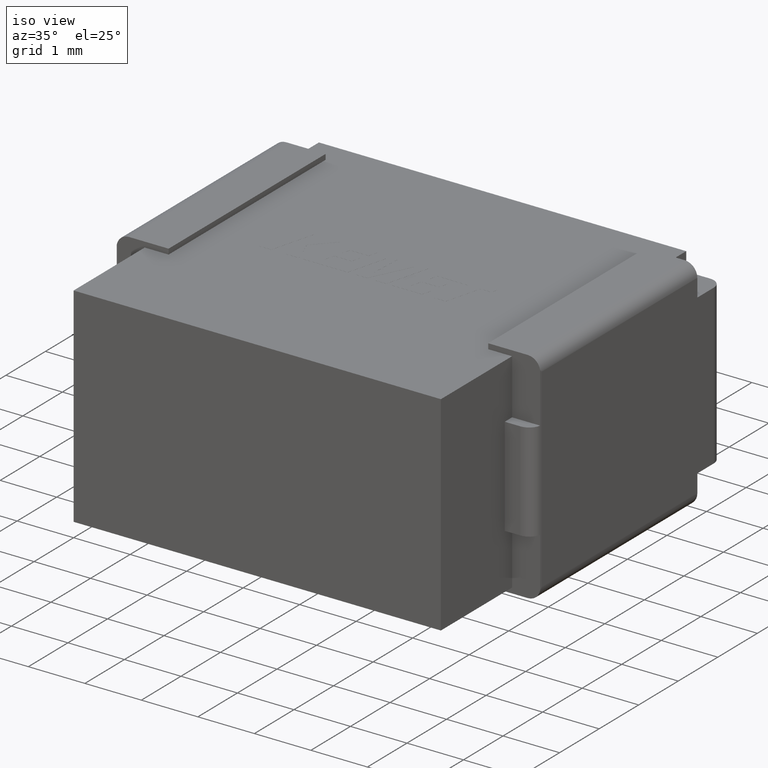
[diagram: clean part render]
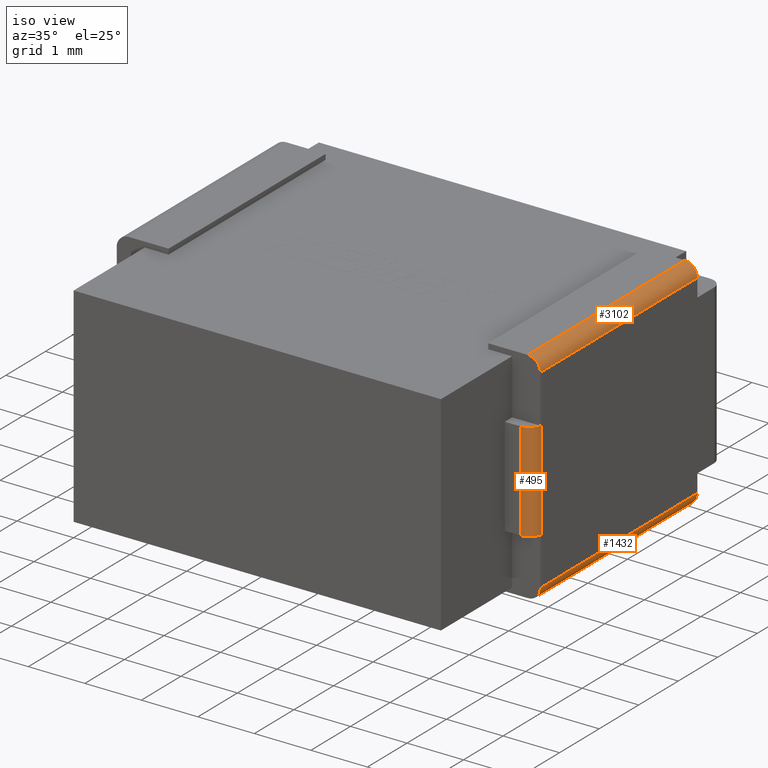
[diagram: same view with one multi-face feature highlighted, each face labeled with its STEP entity id]
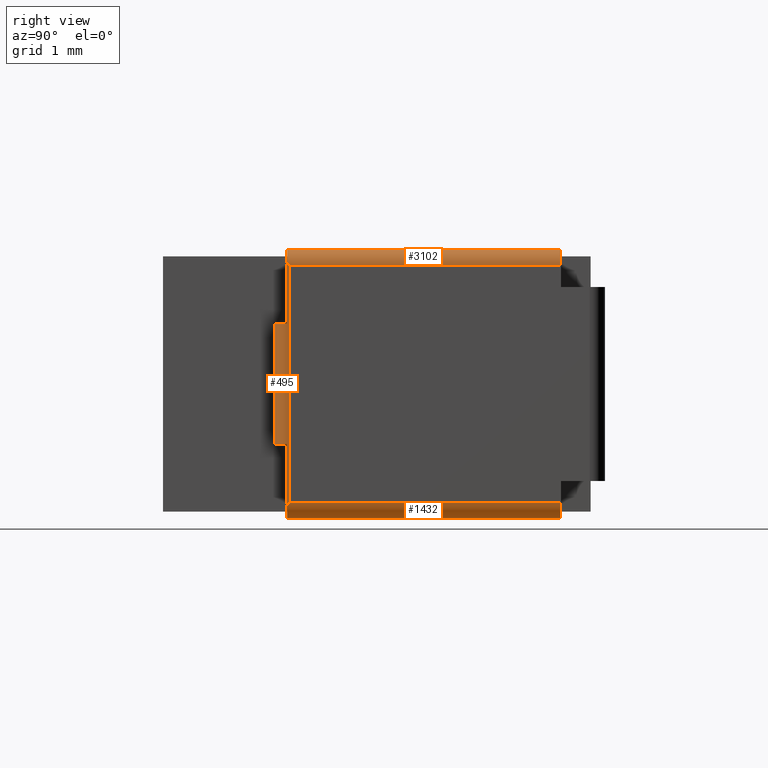
[diagram: same view with one multi-face feature highlighted, each face labeled with its STEP entity id]
A machine part, iso view. The highlighted faces form ONE feature: a constant-radius fillet chain: 3 tangent blend faces with common blend radius 0.222 mm. The faces share edges in the B-rep.
A second angle (right view) of the same feature is appended — it is thin or edge-on in the first view.
Their STEP definitions:
[1] entity #495 (Cylinder):
#23 = CARTESIAN_POINT ( 'NONE',  ( 6.778000000000001357, 1.835326539126285184, -0.4439999999999999503 ) ) ;
#102 =( BOUNDED_CURVE ( )  B_SPLINE_CURVE ( 3, ( #305, #1713, #3966, #4353 ),
 .UNSPECIFIED., .F., .F. ) 
 B_SPLINE_CURVE_WITH_KNOTS ( ( 4, 4 ),
 ( 1.407914902314552075, 1.570796326794896780 ),
 .UNSPECIFIED. ) 
 CURVE ( )  GEOMETRIC_REPRESENTATION_ITEM ( )  RATIONAL_B_SPLINE_CURVE ( ( 1.000000000000000000, 0.9977903585054996860, 0.9977903585054996860, 1.000000000000000000 ) ) 
 REPRESENTATION_ITEM ( '' )  );
#111 = LINE ( 'NONE', #546, #1683 ) ;
#278 = AXIS2_PLACEMENT_3D ( 'NONE', #4503, #1280, #2394 ) ;
#305 = CARTESIAN_POINT ( 'NONE',  ( 6.997061635162345361, 1.799326539126285596, -0.09151177721998315917 ) ) ;
#495 = ADVANCED_FACE ( 'NONE', ( #2867 ), #1365, .T. ) ;
#546 = CARTESIAN_POINT ( 'NONE',  ( 6.997061635162345361, 1.799326539126285596, -3.608488222780017018 ) ) ;
#559 = EDGE_CURVE ( 'NONE', #1162, #2958, #102, .T. ) ;
#591 = LINE ( 'NONE', #2048, #3711 ) ;
#657 = EDGE_LOOP ( 'NONE', ( #1097, #4380, #755, #3801, #4087, #1902, #2125, #4541 ) ) ;
#723 = VERTEX_POINT ( 'NONE', #1617 ) ;
#755 = ORIENTED_EDGE ( 'NONE', *, *, #2820, .F. ) ;
#784 = CARTESIAN_POINT ( 'NONE',  ( 6.778000000000001357, 1.613326539126285208, -0.9767999999999998906 ) ) ;
#865 = VERTEX_POINT ( 'NONE', #2262 ) ;
#961 = CARTESIAN_POINT ( 'NONE',  ( 6.997061635162345361, 1.799326539126285596, -0.09151177721998315917 ) ) ;
#1097 = ORIENTED_EDGE ( 'NONE', *, *, #4347, .F. ) ;
#1124 = EDGE_CURVE ( 'NONE', #3219, #723, #1547, .T. ) ;
#1162 = VERTEX_POINT ( 'NONE', #961 ) ;
#1207 = CARTESIAN_POINT ( 'NONE',  ( 7.000000000000000888, 1.835326539126285184, -3.572488222780016542 ) ) ;
#1280 = DIRECTION ( 'NONE',  ( -0.000000000000000000, 1.165808787618822299E-15, 1.000000000000000000 ) ) ;
#1307 = VECTOR ( 'NONE', #3029, 1000.000000000000000 ) ;
#1320 = VERTEX_POINT ( 'NONE', #2169 ) ;
#1365 = CYLINDRICAL_SURFACE ( 'NONE', #3203, 0.2219999999999999751 ) ;
#1547 =( BOUNDED_CURVE ( )  B_SPLINE_CURVE ( 3, ( #1557, #2990, #4406, #4052 ),
 .UNSPECIFIED., .F., .F. ) 
 B_SPLINE_CURVE_WITH_KNOTS ( ( 4, 4 ),
 ( 1.570796326794896558, 1.733677751275242152 ),
 .UNSPECIFIED. ) 
 CURVE ( )  GEOMETRIC_REPRESENTATION_ITEM ( )  RATIONAL_B_SPLINE_CURVE ( ( 1.000000000000000000, 0.9977903585054994640, 0.9977903585054994640, 1.000000000000000000 ) ) 
 REPRESENTATION_ITEM ( '' )  );
#1557 = CARTESIAN_POINT ( 'NONE',  ( 7.000000000000000888, 1.835326539126285184, -3.572488222780016542 ) ) ;
#1617 = CARTESIAN_POINT ( 'NONE',  ( 6.997061635162345361, 1.799326539126285596, -3.608488222780017018 ) ) ;
#1683 = VECTOR ( 'NONE', #1955, 1000.000000000000000 ) ;
#1713 = CARTESIAN_POINT ( 'NONE',  ( 6.999018376017032139, 1.811233396104519500, -0.1034186341982176460 ) ) ;
#1777 = DIRECTION ( 'NONE',  ( 0.000000000000000000, 0.000000000000000000, -1.000000000000000000 ) ) ;
#1862 = CARTESIAN_POINT ( 'NONE',  ( 7.000000000000000888, 1.835326539126285184, -0.4439999999999999503 ) ) ;
#1902 = ORIENTED_EDGE ( 'NONE', *, *, #3103, .F. ) ;
#1955 = DIRECTION ( 'NONE',  ( -0.000000000000000000, -0.000000000000000000, 1.000000000000000000 ) ) ;
#2048 = CARTESIAN_POINT ( 'NONE',  ( 6.997061635162345361, 1.799326539126285152, -0.9768000000000001126 ) ) ;
#2125 = ORIENTED_EDGE ( 'NONE', *, *, #559, .F. ) ;
#2169 = CARTESIAN_POINT ( 'NONE',  ( 6.997061635162345361, 1.799326539126285152, -0.9768000000000001126 ) ) ;
#2262 = CARTESIAN_POINT ( 'NONE',  ( 6.997061635162345361, 1.799326539126285152, -2.723200000000000287 ) ) ;
#2394 = DIRECTION ( 'NONE',  ( 0.000000000000000000, -1.000000000000000000, 9.767587139509050785E-16 ) ) ;
#2428 = CARTESIAN_POINT ( 'NONE',  ( 6.778000000000001357, 1.835326539126285184, -2.723200000000000287 ) ) ;
#2507 = DIRECTION ( 'NONE',  ( 0.000000000000000000, 0.000000000000000000, -1.000000000000000000 ) ) ;
#2680 = VERTEX_POINT ( 'NONE', #784 ) ;
#2811 = LINE ( 'NONE', #4074, #1307 ) ;
#2820 = EDGE_CURVE ( 'NONE', #865, #4451, #4290, .T. ) ;
#2867 = FACE_OUTER_BOUND ( 'NONE', #657, .T. ) ;
#2958 = VERTEX_POINT ( 'NONE', #3658 ) ;
#2967 = LINE ( 'NONE', #1862, #4058 ) ;
#2990 = CARTESIAN_POINT ( 'NONE',  ( 7.000000000000001776, 1.823259970522389972, -3.584554791383912420 ) ) ;
#3029 = DIRECTION ( 'NONE',  ( -0.000000000000000000, -0.000000000000000000, 1.000000000000000000 ) ) ;
#3103 = EDGE_CURVE ( 'NONE', #2958, #3219, #2967, .T. ) ;
#3143 = DIRECTION ( 'NONE',  ( -1.000000000000000000, 0.000000000000000000, 0.000000000000000000 ) ) ;
#3203 = AXIS2_PLACEMENT_3D ( 'NONE', #23, #2507, #3143 ) ;
#3219 = VERTEX_POINT ( 'NONE', #1207 ) ;
#3331 = CIRCLE ( 'NONE', #278, 0.2219999999999999751 ) ;
#3557 = CARTESIAN_POINT ( 'NONE',  ( 6.778000000000001357, 1.613326539126285208, -2.723200000000000287 ) ) ;
#3658 = CARTESIAN_POINT ( 'NONE',  ( 7.000000000000000888, 1.835326539126285184, -0.1275117772199834409 ) ) ;
#3711 = VECTOR ( 'NONE', #4171, 1000.000000000000000 ) ;
#3801 = ORIENTED_EDGE ( 'NONE', *, *, #4264, .F. ) ;
#3935 = EDGE_CURVE ( 'NONE', #4451, #2680, #2811, .T. ) ;
#3966 = CARTESIAN_POINT ( 'NONE',  ( 7.000000000000001776, 1.823259970522389972, -0.1154452086160880075 ) ) ;
#4017 = DIRECTION ( 'NONE',  ( 0.000000000000000000, 0.000000000000000000, -1.000000000000000000 ) ) ;
#4052 = CARTESIAN_POINT ( 'NONE',  ( 6.997061635162345361, 1.799326539126285596, -3.608488222780017018 ) ) ;
#4058 = VECTOR ( 'NONE', #4017, 1000.000000000000000 ) ;
#4074 = CARTESIAN_POINT ( 'NONE',  ( 6.778000000000001357, 1.613326539126285208, -0.9767999999999998906 ) ) ;
#4087 = ORIENTED_EDGE ( 'NONE', *, *, #1124, .F. ) ;
#4171 = DIRECTION ( 'NONE',  ( -0.000000000000000000, -0.000000000000000000, 1.000000000000000000 ) ) ;
#4231 = DIRECTION ( 'NONE',  ( -1.000000000000000000, 0.000000000000000000, 0.000000000000000000 ) ) ;
#4264 = EDGE_CURVE ( 'NONE', #723, #865, #111, .T. ) ;
#4290 = CIRCLE ( 'NONE', #4511, 0.2219999999999999751 ) ;
#4338 = EDGE_CURVE ( 'NONE', #1320, #1162, #591, .T. ) ;
#4347 = EDGE_CURVE ( 'NONE', #2680, #1320, #3331, .T. ) ;
#4353 = CARTESIAN_POINT ( 'NONE',  ( 7.000000000000000888, 1.835326539126285184, -0.1275117772199834409 ) ) ;
#4380 = ORIENTED_EDGE ( 'NONE', *, *, #3935, .F. ) ;
#4406 = CARTESIAN_POINT ( 'NONE',  ( 6.999018376017031251, 1.811233396104519500, -3.596581365801783114 ) ) ;
#4451 = VERTEX_POINT ( 'NONE', #3557 ) ;
#4503 = CARTESIAN_POINT ( 'NONE',  ( 6.778000000000001357, 1.835326539126285184, -0.9768000000000001126 ) ) ;
#4511 = AXIS2_PLACEMENT_3D ( 'NONE', #2428, #1777, #4231 ) ;
#4541 = ORIENTED_EDGE ( 'NONE', *, *, #4338, .F. ) ;
[2] entity #3102 (Cylinder):
#38 = ORIENTED_EDGE ( 'NONE', *, *, #1969, .F. ) ;
#102 =( BOUNDED_CURVE ( )  B_SPLINE_CURVE ( 3, ( #305, #1713, #3966, #4353 ),
 .UNSPECIFIED., .F., .F. ) 
 B_SPLINE_CURVE_WITH_KNOTS ( ( 4, 4 ),
 ( 1.407914902314552075, 1.570796326794896780 ),
 .UNSPECIFIED. ) 
 CURVE ( )  GEOMETRIC_REPRESENTATION_ITEM ( )  RATIONAL_B_SPLINE_CURVE ( ( 1.000000000000000000, 0.9977903585054996860, 0.9977903585054996860, 1.000000000000000000 ) ) 
 REPRESENTATION_ITEM ( '' )  );
#166 = DIRECTION ( 'NONE',  ( 0.000000000000000000, -1.000000000000000000, 0.000000000000000000 ) ) ;
#305 = CARTESIAN_POINT ( 'NONE',  ( 6.997061635162345361, 1.799326539126285596, -0.09151177721998315917 ) ) ;
#416 = AXIS2_PLACEMENT_3D ( 'NONE', #4382, #3313, #1183 ) ;
#528 = DIRECTION ( 'NONE',  ( -0.000000000000000000, 1.000000000000000000, -0.000000000000000000 ) ) ;
#559 = EDGE_CURVE ( 'NONE', #1162, #2958, #102, .T. ) ;
#565 = CIRCLE ( 'NONE', #2035, 0.2219999999999999751 ) ;
#574 = CARTESIAN_POINT ( 'NONE',  ( 6.778000000000001357, 5.767326539126284679, -0.1275117772199834409 ) ) ;
#953 = EDGE_CURVE ( 'NONE', #4386, #1372, #4538, .T. ) ;
#961 = CARTESIAN_POINT ( 'NONE',  ( 6.997061635162345361, 1.799326539126285596, -0.09151177721998315917 ) ) ;
#969 = DIRECTION ( 'NONE',  ( 0.000000000000000000, 0.000000000000000000, -1.000000000000000000 ) ) ;
#1081 = DIRECTION ( 'NONE',  ( -0.000000000000000000, 1.000000000000000000, -0.000000000000000000 ) ) ;
#1162 = VERTEX_POINT ( 'NONE', #961 ) ;
#1183 = DIRECTION ( 'NONE',  ( 0.000000000000000000, 0.000000000000000000, -1.000000000000000000 ) ) ;
#1372 = VERTEX_POINT ( 'NONE', #3374 ) ;
#1516 = VECTOR ( 'NONE', #166, 1000.000000000000000 ) ;
#1525 = LINE ( 'NONE', #4394, #1516 ) ;
#1654 = FACE_OUTER_BOUND ( 'NONE', #3672, .T. ) ;
#1713 = CARTESIAN_POINT ( 'NONE',  ( 6.999018376017032139, 1.811233396104519500, -0.1034186341982176460 ) ) ;
#1774 = EDGE_CURVE ( 'NONE', #1372, #2958, #1525, .T. ) ;
#1969 = EDGE_CURVE ( 'NONE', #2891, #4386, #2135, .T. ) ;
#2033 = VECTOR ( 'NONE', #1081, 1000.000000000000000 ) ;
#2035 = AXIS2_PLACEMENT_3D ( 'NONE', #3678, #3708, #2643 ) ;
#2135 = LINE ( 'NONE', #2857, #2033 ) ;
#2643 = DIRECTION ( 'NONE',  ( 0.000000000000000000, 0.000000000000000000, -1.000000000000000000 ) ) ;
#2813 = CARTESIAN_POINT ( 'NONE',  ( 6.778000000000001357, 1.799326539126285152, 0.09448822278001652031 ) ) ;
#2857 = CARTESIAN_POINT ( 'NONE',  ( 6.778000000000001357, 5.767326539126284679, 0.09448822278001652031 ) ) ;
#2891 = VERTEX_POINT ( 'NONE', #2813 ) ;
#2941 = ORIENTED_EDGE ( 'NONE', *, *, #953, .F. ) ;
#2958 = VERTEX_POINT ( 'NONE', #3658 ) ;
#3008 = EDGE_CURVE ( 'NONE', #1162, #2891, #565, .T. ) ;
#3067 = CARTESIAN_POINT ( 'NONE',  ( 6.778000000000001357, 5.767326539126284679, 0.09448822278001652031 ) ) ;
#3102 = ADVANCED_FACE ( 'NONE', ( #1654 ), #4477, .T. ) ;
#3313 = DIRECTION ( 'NONE',  ( 0.000000000000000000, -1.000000000000000000, 0.000000000000000000 ) ) ;
#3374 = CARTESIAN_POINT ( 'NONE',  ( 7.000000000000000888, 5.767326539126284679, -0.1275117772199834409 ) ) ;
#3658 = CARTESIAN_POINT ( 'NONE',  ( 7.000000000000000888, 1.835326539126285184, -0.1275117772199834409 ) ) ;
#3660 = AXIS2_PLACEMENT_3D ( 'NONE', #574, #528, #969 ) ;
#3666 = ORIENTED_EDGE ( 'NONE', *, *, #3008, .F. ) ;
#3672 = EDGE_LOOP ( 'NONE', ( #3666, #3816, #4288, #2941, #38 ) ) ;
#3678 = CARTESIAN_POINT ( 'NONE',  ( 6.778000000000001357, 1.799326539126285596, -0.1275117772199834409 ) ) ;
#3708 = DIRECTION ( 'NONE',  ( 0.000000000000000000, -1.000000000000000000, 0.000000000000000000 ) ) ;
#3816 = ORIENTED_EDGE ( 'NONE', *, *, #559, .T. ) ;
#3966 = CARTESIAN_POINT ( 'NONE',  ( 7.000000000000001776, 1.823259970522389972, -0.1154452086160880075 ) ) ;
#4288 = ORIENTED_EDGE ( 'NONE', *, *, #1774, .F. ) ;
#4353 = CARTESIAN_POINT ( 'NONE',  ( 7.000000000000000888, 1.835326539126285184, -0.1275117772199834409 ) ) ;
#4382 = CARTESIAN_POINT ( 'NONE',  ( 6.778000000000001357, 5.767326539126284679, -0.1275117772199834409 ) ) ;
#4386 = VERTEX_POINT ( 'NONE', #3067 ) ;
#4394 = CARTESIAN_POINT ( 'NONE',  ( 7.000000000000000888, 5.767326539126284679, -0.1275117772199834409 ) ) ;
#4477 = CYLINDRICAL_SURFACE ( 'NONE', #416, 0.2219999999999999751 ) ;
#4538 = CIRCLE ( 'NONE', #3660, 0.2219999999999999751 ) ;
[3] entity #1432 (Cylinder):
#83 = EDGE_CURVE ( 'NONE', #693, #723, #837, .T. ) ;
#158 = EDGE_LOOP ( 'NONE', ( #2461, #2227, #1159, #3116, #909 ) ) ;
#595 = AXIS2_PLACEMENT_3D ( 'NONE', #787, #2217, #2240 ) ;
#603 = EDGE_CURVE ( 'NONE', #2999, #2192, #2753, .T. ) ;
#693 = VERTEX_POINT ( 'NONE', #2718 ) ;
#723 = VERTEX_POINT ( 'NONE', #1617 ) ;
#787 = CARTESIAN_POINT ( 'NONE',  ( 6.778000000000001357, 5.767326539126284679, -3.572488222780016542 ) ) ;
#837 = CIRCLE ( 'NONE', #4557, 0.2219999999999999751 ) ;
#858 = CYLINDRICAL_SURFACE ( 'NONE', #3983, 0.2219999999999999751 ) ;
#909 = ORIENTED_EDGE ( 'NONE', *, *, #603, .F. ) ;
#994 = DIRECTION ( 'NONE',  ( 0.000000000000000000, 0.000000000000000000, 1.000000000000000000 ) ) ;
#1018 = EDGE_CURVE ( 'NONE', #3219, #2999, #1753, .T. ) ;
#1052 = DIRECTION ( 'NONE',  ( 0.000000000000000000, -1.000000000000000000, 0.000000000000000000 ) ) ;
#1075 = DIRECTION ( 'NONE',  ( 0.000000000000000000, -1.000000000000000000, 0.000000000000000000 ) ) ;
#1124 = EDGE_CURVE ( 'NONE', #3219, #723, #1547, .T. ) ;
#1159 = ORIENTED_EDGE ( 'NONE', *, *, #83, .F. ) ;
#1207 = CARTESIAN_POINT ( 'NONE',  ( 7.000000000000000888, 1.835326539126285184, -3.572488222780016542 ) ) ;
#1423 = CARTESIAN_POINT ( 'NONE',  ( 6.778000000000001357, 1.799326539126285596, -3.794488222780016518 ) ) ;
#1432 = ADVANCED_FACE ( 'NONE', ( #2242 ), #858, .T. ) ;
#1547 =( BOUNDED_CURVE ( )  B_SPLINE_CURVE ( 3, ( #1557, #2990, #4406, #4052 ),
 .UNSPECIFIED., .F., .F. ) 
 B_SPLINE_CURVE_WITH_KNOTS ( ( 4, 4 ),
 ( 1.570796326794896558, 1.733677751275242152 ),
 .UNSPECIFIED. ) 
 CURVE ( )  GEOMETRIC_REPRESENTATION_ITEM ( )  RATIONAL_B_SPLINE_CURVE ( ( 1.000000000000000000, 0.9977903585054994640, 0.9977903585054994640, 1.000000000000000000 ) ) 
 REPRESENTATION_ITEM ( '' )  );
#1557 = CARTESIAN_POINT ( 'NONE',  ( 7.000000000000000888, 1.835326539126285184, -3.572488222780016542 ) ) ;
#1617 = CARTESIAN_POINT ( 'NONE',  ( 6.997061635162345361, 1.799326539126285596, -3.608488222780017018 ) ) ;
#1753 = LINE ( 'NONE', #4172, #2301 ) ;
#1770 = LINE ( 'NONE', #1423, #2796 ) ;
#2031 = CARTESIAN_POINT ( 'NONE',  ( 6.778000000000001357, 5.767326539126284679, -3.572488222780016542 ) ) ;
#2128 = CARTESIAN_POINT ( 'NONE',  ( 6.778000000000001357, 5.767326539126284679, -3.794488222780016518 ) ) ;
#2154 = DIRECTION ( 'NONE',  ( 0.000000000000000000, 0.000000000000000000, -1.000000000000000000 ) ) ;
#2192 = VERTEX_POINT ( 'NONE', #2128 ) ;
#2217 = DIRECTION ( 'NONE',  ( -0.000000000000000000, 1.000000000000000000, -0.000000000000000000 ) ) ;
#2227 = ORIENTED_EDGE ( 'NONE', *, *, #1124, .T. ) ;
#2240 = DIRECTION ( 'NONE',  ( 0.000000000000000000, 0.000000000000000000, -1.000000000000000000 ) ) ;
#2242 = FACE_OUTER_BOUND ( 'NONE', #158, .T. ) ;
#2252 = EDGE_CURVE ( 'NONE', #2192, #693, #1770, .T. ) ;
#2301 = VECTOR ( 'NONE', #2762, 1000.000000000000000 ) ;
#2461 = ORIENTED_EDGE ( 'NONE', *, *, #1018, .F. ) ;
#2718 = CARTESIAN_POINT ( 'NONE',  ( 6.778000000000001357, 1.799326539126285152, -3.794488222780016518 ) ) ;
#2753 = CIRCLE ( 'NONE', #595, 0.2219999999999999751 ) ;
#2762 = DIRECTION ( 'NONE',  ( -0.000000000000000000, 1.000000000000000000, -0.000000000000000000 ) ) ;
#2796 = VECTOR ( 'NONE', #1075, 1000.000000000000000 ) ;
#2990 = CARTESIAN_POINT ( 'NONE',  ( 7.000000000000001776, 1.823259970522389972, -3.584554791383912420 ) ) ;
#2999 = VERTEX_POINT ( 'NONE', #3637 ) ;
#3116 = ORIENTED_EDGE ( 'NONE', *, *, #2252, .F. ) ;
#3219 = VERTEX_POINT ( 'NONE', #1207 ) ;
#3637 = CARTESIAN_POINT ( 'NONE',  ( 7.000000000000000888, 5.767326539126284679, -3.572488222780016542 ) ) ;
#3757 = DIRECTION ( 'NONE',  ( -0.000000000000000000, 1.000000000000000000, 0.000000000000000000 ) ) ;
#3983 = AXIS2_PLACEMENT_3D ( 'NONE', #2031, #3757, #994 ) ;
#4052 = CARTESIAN_POINT ( 'NONE',  ( 6.997061635162345361, 1.799326539126285596, -3.608488222780017018 ) ) ;
#4172 = CARTESIAN_POINT ( 'NONE',  ( 7.000000000000000888, 5.767326539126284679, -3.572488222780016542 ) ) ;
#4406 = CARTESIAN_POINT ( 'NONE',  ( 6.999018376017031251, 1.811233396104519500, -3.596581365801783114 ) ) ;
#4557 = AXIS2_PLACEMENT_3D ( 'NONE', #4574, #1052, #2154 ) ;
#4574 = CARTESIAN_POINT ( 'NONE',  ( 6.778000000000001357, 1.799326539126285596, -3.572488222780016542 ) ) ;